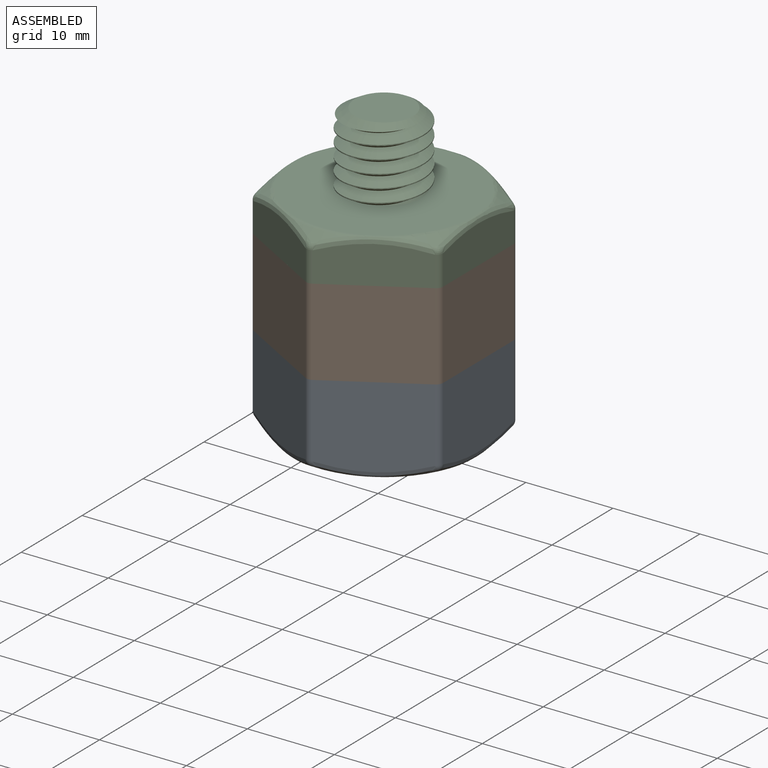
[diagram: assembled view]
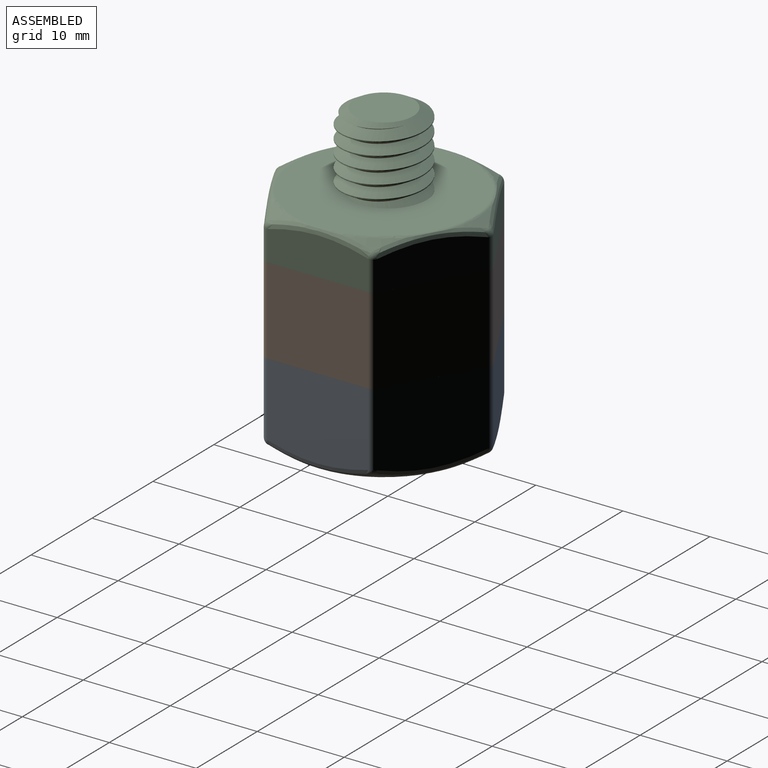
[diagram: assembled view, second angle]
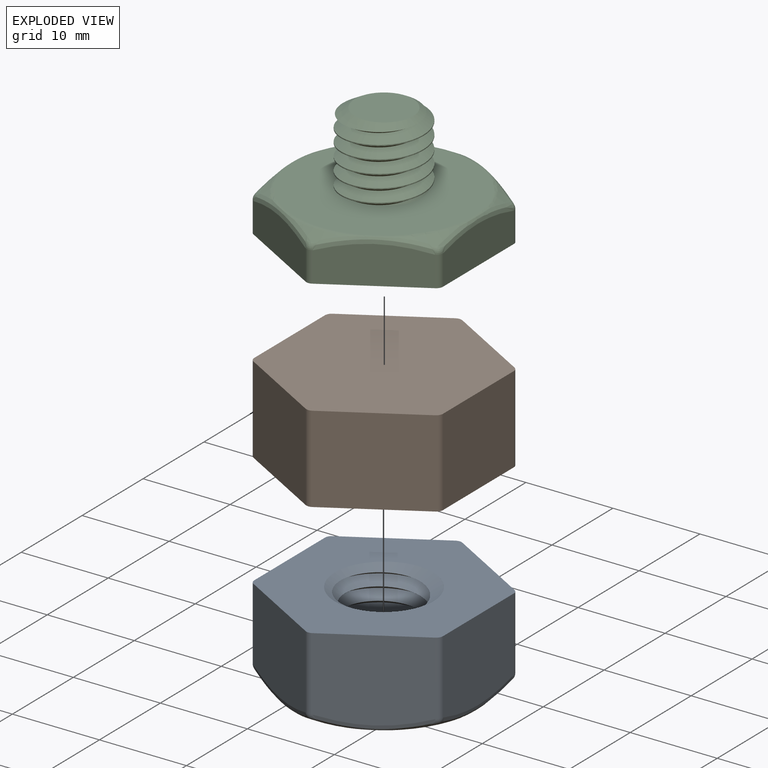
[diagram: exploded view]
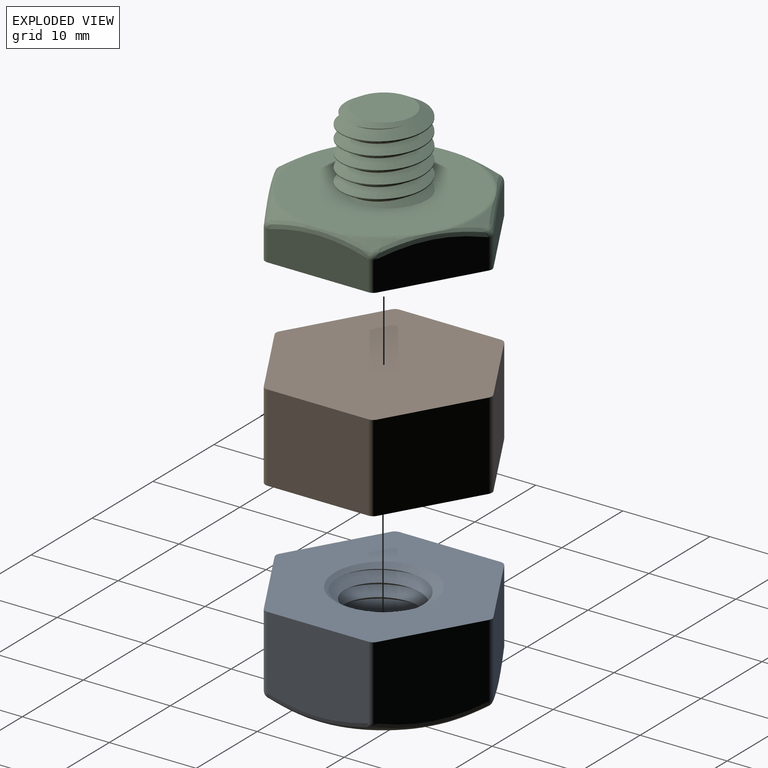
[diagram: exploded view, second angle]
ASSEMBLY  parts=3 mates=2
PART A: 38 faces, bbox 23.6x24.8x11.5 mm
  f0: cone r=17.18mm half-angle=60deg, axis (0,0,1), area 4.7mm2, adj f26,f30,f33
  f1: cone r=17.18mm half-angle=60deg, axis (0,0,1), area 4.7mm2, adj f29,f30,f33
  f2: cone r=17.18mm half-angle=60deg, axis (0,0,1), area 4.7mm2, adj f23,f29,f30
  f3: cone r=17.18mm half-angle=60deg, axis (0,0,1), area 4.7mm2, adj f23,f24,f30
  f4: cone r=17.18mm half-angle=60deg, axis (0,0,1), area 4.7mm2, adj f24,f25,f30
  f5: plane 20.67x20.67mm, normal (0,0,-1), area 235.3mm2, adj f30,f34
  f6: plane 11.62x9.37mm, normal (-1,0,0), area 105.1mm2, adj f13,f27,f28,f33
  f7: plane 10.08x9.37mm, normal (-0.5,-0.87,0), area 105.1mm2, adj f13,f18,f28,f29
  f8: plane 10.08x9.37mm, normal (0.5,-0.87,0), area 105.1mm2, adj f13,f15,f18,f23
  f9: plane 11.61x9.37mm, normal (1,0,0), area 105.1mm2, adj f13,f15,f16,f24
  f10: plane 10.08x9.37mm, normal (0.5,0.87,0), area 105.1mm2, adj f13,f16,f17,f25
  f11: cylinder r=4.35mm len=8.7mm, axis (0,0,-1), area 2.1mm2, adj f34,f35,f36,f37
  f12: plane 10.08x9.37mm, normal (-0.5,0.87,0), area 105.1mm2, adj f13,f17,f26,f27
  f13: plane 24.81x21.7mm, normal (0,0,1), area 307.3mm2, adj f6,f7,f8,f9,f10,f12,f15,f16
  f14: cone r=17.18mm half-angle=60deg, axis (0,0,1), area 4.7mm2, adj f25,f26,f30
  f15: cylinder r=0.8mm len=8.47mm, axis (0,0,-1), area 7.1mm2, adj f8,f9,f13,f19
  f16: cylinder r=0.8mm len=8.47mm, axis (0,0,-1), area 7.1mm2, adj f9,f10,f13,f20
  f17: cylinder r=0.8mm len=8.47mm, axis (0,0,-1), area 7.1mm2, adj f10,f12,f13,f21
  f18: cylinder r=0.8mm len=8.47mm, axis (0,0,-1), area 7.1mm2, adj f7,f8,f13,f22
  f19: sphere r=0.8mm, area 0.4mm2, adj f15,f23,f24
  f20: sphere r=0.8mm, area 0.3mm2, adj f16,f24,f25
  f21: sphere r=0.8mm, area 0.3mm2, adj f17,f25,f26
  f22: sphere r=0.8mm, area 0.3mm2, adj f18,f23,f29
  f23: bspline ~10.49x6.3mm, area 10.3mm2, adj f2,f3,f8,f19,f22,f30
  f24: bspline ~16.37x2.28mm, area 9.9mm2, adj f3,f4,f9,f19,f20,f30
  f25: bspline ~10.49x6.3mm, area 10.3mm2, adj f4,f10,f14,f20,f21,f30
  f26: bspline ~10.49x6.3mm, area 10.3mm2, adj f0,f12,f14,f21,f30,f31
  f27: cylinder r=0.8mm len=8.47mm, axis (0,0,-1), area 7.1mm2, adj f6,f12,f13,f31
  f28: cylinder r=0.8mm len=8.47mm, axis (0,0,-1), area 7.1mm2, adj f6,f7,f13,f32
  f29: bspline ~10.49x6.3mm, area 10.3mm2, adj f1,f2,f7,f22,f30,f32
  f30: torus R=10.34mm, axis (0,0,1), area 24.5mm2, adj f0,f1,f2,f3,f4,f5,f14,f23
  f31: sphere r=0.8mm, area 0.3mm2, adj f26,f27,f33
  f32: sphere r=0.8mm, area 0.3mm2, adj f28,f29,f33
  f33: bspline ~12x1.59mm, area 10.3mm2, adj f0,f1,f6,f30,f31,f32
  f34: cone r=5.65mm half-angle=60deg, axis (0,0,-1), area 24.9mm2, adj f5,f11,f36,f37
  f35: cone r=4.35mm half-angle=60deg, axis (0,0,1), area 24.9mm2, adj f11,f13,f36,f37
  f36: bspline ~13.03x11.28mm, area 289.3mm2, adj f11,f34,f35,f37
  f37: bspline ~13.03x11.28mm, area 285mm2, adj f11,f34,f35,f36
PART B: 15 faces, bbox 21.7x24.8x10 mm
  f0: plane 11.6x10mm, normal (-1,0,0), area 116mm2, adj f7,f8,f9,f14
  f1: plane 10.05x10mm, normal (-0.5,-0.87,0), area 116mm2, adj f7,f8,f9,f10
  f2: plane 10.05x10mm, normal (0.5,-0.87,0), area 116mm2, adj f7,f8,f10,f11
  f3: plane 11.6x10mm, normal (1,0,0), area 116mm2, adj f7,f8,f11,f12
  f4: plane 10.05x10mm, normal (0.5,0.87,0), area 116mm2, adj f7,f8,f12,f13
  f5: cone r=4.35mm half-angle=25deg, axis (0,0,1), area 140.7mm2, adj f7
  f6: plane 10.05x10mm, normal (-0.5,0.87,0), area 116mm2, adj f7,f8,f13,f14
  f7: plane 24.81x21.7mm, normal (0,0,1), area 348.1mm2, adj f0,f1,f2,f3,f4,f5,f6,f9
  f8: plane 24.81x21.7mm, normal (0,0,-1), area 407.6mm2, adj f0,f1,f2,f3,f4,f6,f9,f10
  f9: cylinder r=0.8mm len=10mm, axis (0,0,-1), area 8.4mm2, adj f0,f1,f7,f8
  f10: cylinder r=0.8mm len=10mm, axis (0,0,-1), area 8.4mm2, adj f1,f2,f7,f8
  f11: cylinder r=0.8mm len=10mm, axis (0,0,-1), area 8.4mm2, adj f2,f3,f7,f8
  f12: cylinder r=0.8mm len=10mm, axis (0,0,-1), area 8.4mm2, adj f3,f4,f7,f8
  f13: cylinder r=0.8mm len=10mm, axis (0,0,-1), area 8.4mm2, adj f4,f6,f7,f8
  f14: cylinder r=0.8mm len=10mm, axis (0,0,-1), area 8.4mm2, adj f0,f6,f7,f8
PART C: 38 faces, bbox 24.5x25.7x15.1 mm
  f0: cone r=14.85mm half-angle=60deg, axis (0,0,-1), area 4.7mm2, adj f27,f33,f34
  f1: cone r=14.85mm half-angle=60deg, axis (0,0,-1), area 4.7mm2, adj f27,f28,f34
  f2: cone r=14.85mm half-angle=60deg, axis (0,0,-1), area 4.7mm2, adj f28,f29,f34
  f3: cone r=14.85mm half-angle=60deg, axis (0,0,-1), area 4.7mm2, adj f29,f30,f34
  f4: cone r=14.85mm half-angle=60deg, axis (0,0,-1), area 4.7mm2, adj f30,f34,f37
  f5: plane 21.59x21.59mm, normal (0,0,1), area 279.8mm2, adj f6,f7,f8,f34
  f6: cylinder r=4.75mm len=9.5mm, axis (0,0,-1), area 18.7mm2, adj f5,f7,f8,f10
  f7: bspline ~10.97x9.94mm, area 193.1mm2, adj f5,f6,f8,f10
  f8: bspline ~10.97x9.5mm, area 193.2mm2, adj f5,f6,f7,f10
  f9: plane 6.7x6.7mm, normal (0,0,1), area 35.3mm2, adj f10
  f10: cone r=3.35mm half-angle=60deg, axis (0,0,-1), area 23.7mm2, adj f6,f7,f8,f9
  f11: cone r=14.85mm half-angle=60deg, axis (0,0,-1), area 4.7mm2, adj f33,f34,f37
  f12: plane 24.81x21.7mm, normal (0,0,-1), area 407.6mm2, adj f13,f14,f15,f16,f17,f18,f19,f20
  f13: plane 10.08x5.83mm, normal (0.5,-0.87,0), area 47.1mm2, adj f12,f22,f32,f33
  f14: plane 10.08x5.83mm, normal (-0.5,-0.87,0), area 47.1mm2, adj f12,f19,f22,f27
  f15: plane 11.62x4.37mm, normal (-1,0,0), area 47.1mm2, adj f12,f19,f20,f28
  f16: plane 10.08x5.83mm, normal (-0.5,0.87,0), area 47.1mm2, adj f12,f20,f21,f29
  f17: plane 10.08x5.83mm, normal (0.5,0.87,0), area 47.1mm2, adj f12,f21,f30,f31
  f18: plane 11.62x4.37mm, normal (1,0,0), area 47.1mm2, adj f12,f31,f32,f37
  f19: cylinder r=0.8mm len=3.47mm, axis (0,0,-1), area 2.9mm2, adj f12,f14,f15,f23
  f20: cylinder r=0.8mm len=3.47mm, axis (0,0,-1), area 2.9mm2, adj f12,f15,f16,f24
  f21: cylinder r=0.8mm len=3.47mm, axis (0,0,-1), area 2.9mm2, adj f12,f16,f17,f25
  f22: cylinder r=0.8mm len=3.47mm, axis (0,0,-1), area 2.9mm2, adj f12,f13,f14,f26
  f23: sphere r=0.8mm, area 0.3mm2, adj f19,f27,f28
  f24: sphere r=0.8mm, area 0.3mm2, adj f20,f28,f29
  f25: sphere r=0.8mm, area 0.3mm2, adj f21,f29,f30
  f26: sphere r=0.8mm, area 0.3mm2, adj f22,f27,f33
  f27: bspline ~10.49x6.3mm, area 10.3mm2, adj f0,f1,f14,f23,f26,f34
  f28: bspline ~12x1.59mm, area 10.3mm2, adj f1,f2,f15,f23,f24,f34
  f29: bspline ~10.49x6.3mm, area 10.3mm2, adj f2,f3,f16,f24,f25,f34
  f30: bspline ~10.49x6.3mm, area 10.3mm2, adj f3,f4,f17,f25,f34,f35
  f31: cylinder r=0.8mm len=3.47mm, axis (0,0,-1), area 2.9mm2, adj f12,f17,f18,f35
  f32: cylinder r=0.8mm len=3.47mm, axis (0,0,-1), area 2.9mm2, adj f12,f13,f18,f36
  f33: bspline ~10.49x6.3mm, area 10.3mm2, adj f0,f11,f13,f26,f34,f36
  f34: torus R=10.34mm, axis (0,0,1), area 24.5mm2, adj f0,f1,f2,f3,f4,f5,f11,f27
  f35: sphere r=0.8mm, area 0.3mm2, adj f30,f31,f37
  f36: sphere r=0.8mm, area 0.3mm2, adj f32,f33,f37
  f37: bspline ~15.45x2.15mm, area 9.9mm2, adj f4,f11,f18,f34,f35,f36
PLACE A t=(-4.43,-5.53,-31.17)mm
PLACE B rot(axis=(1,0,0),180deg) t=(-4.43,-5.53,-21.17)mm
PLACE C t=(-4.43,-5.53,-16.17)mm
MATE fastened C.f6 <-> B.f5  axis (0,0,-1) through (-4.43,-5.53,-16.17)mm
MATE fastened B.f7 <-> A.f13  axis (0,0,-1) through (-9.85,3.87,-26.17)mm
